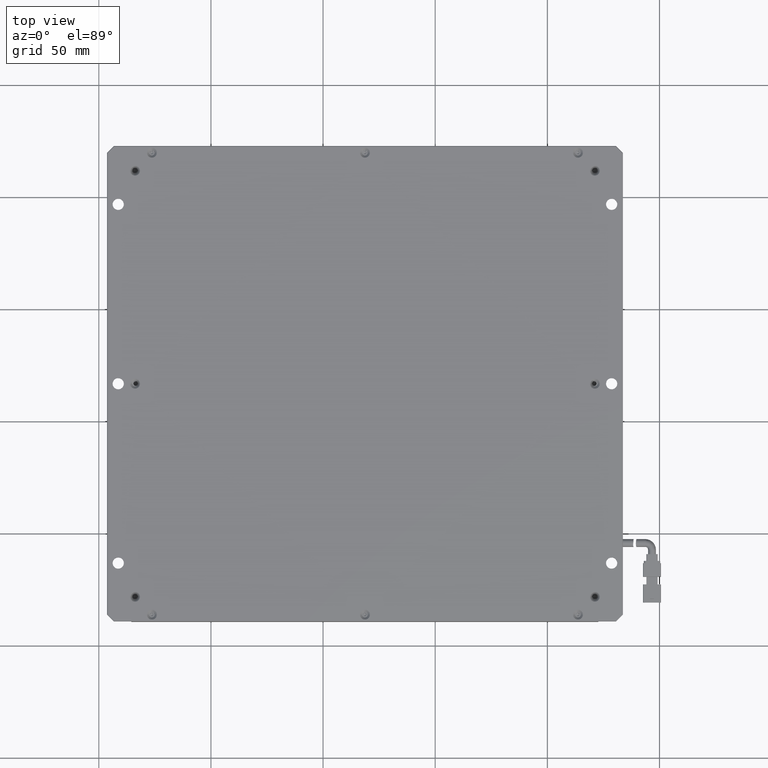
[diagram: clean part render]
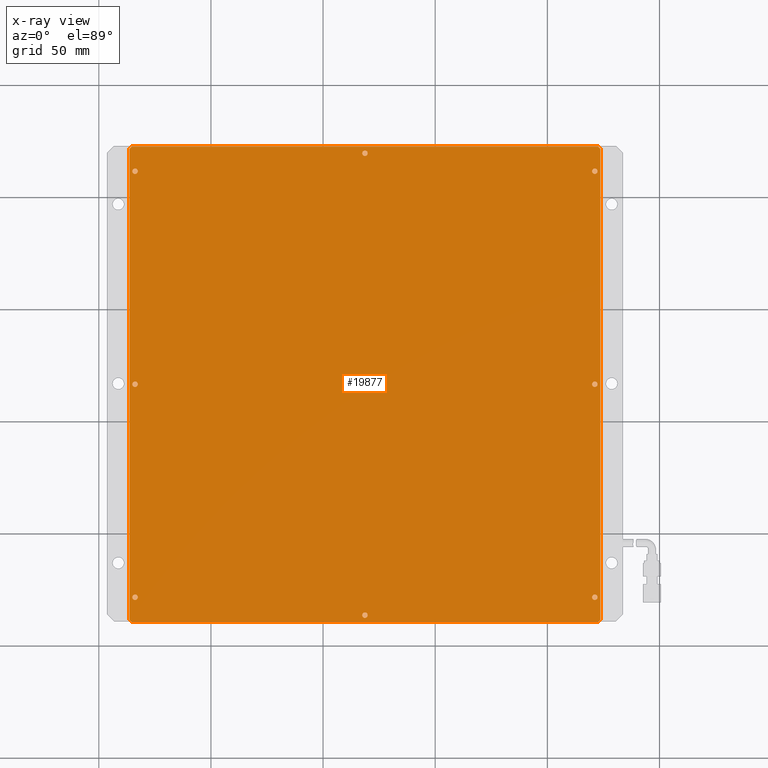
[diagram: x-ray — body ghosted, one internal face saturated and labeled with its STEP entity id]
A machine part, top view, then the same camera in x-ray: the body is ghosted and one INTERNAL B-rep face — a face not visible from any outside direction — is saturated and labeled: STEP entity #19877.
In plain terms, the highlighted planar face has unit normal (0, 0, -1).
Its self-contained STEP definition (entity closure, byte-faithful):
#30 = VERTEX_POINT ( 'NONE', #9973 ) ;
#65 = VERTEX_POINT ( 'NONE', #20280 ) ;
#179 = CARTESIAN_POINT ( 'NONE',  ( 121.1657505824761500, -33.37875398278074400, -13.00000000002364500 ) ) ;
#457 = EDGE_LOOP ( 'NONE', ( #17135, #3938 ) ) ;
#559 = AXIS2_PLACEMENT_3D ( 'NONE', #16356, #14251, #6020 ) ;
#812 = CARTESIAN_POINT ( 'NONE',  ( 122.6657505824761200, -139.3787539827808400, -13.00000000002364500 ) ) ;
#992 = CIRCLE ( 'NONE', #5409, 1.199999999999992600 ) ;
#1040 = EDGE_CURVE ( 'NONE', #5546, #5785, #14976, .T. ) ;
#1345 = VERTEX_POINT ( 'NONE', #15005 ) ;
#1635 = EDGE_LOOP ( 'NONE', ( #11329, #16116 ) ) ;
#1636 = VECTOR ( 'NONE', #17479, 1000.000000000000000 ) ;
#1710 = CARTESIAN_POINT ( 'NONE',  ( -85.33424941752389300, 72.62124601721919200, -13.00000000002364500 ) ) ;
#1742 = CARTESIAN_POINT ( 'NONE',  ( 123.6657505824761500, -138.3787539827808400, -13.00000000002364500 ) ) ;
#1825 = EDGE_CURVE ( 'NONE', #3852, #8651, #992, .T. ) ;
#1938 = DIRECTION ( 'NONE',  ( 1.000000000000000000, 0.0000000000000000000, 0.0000000000000000000 ) ) ;
#2200 = ORIENTED_EDGE ( 'NONE', *, *, #16374, .F. ) ;
#2327 = AXIS2_PLACEMENT_3D ( 'NONE', #8302, #14957, #20410 ) ;
#2459 = DIRECTION ( 'NONE',  ( 0.7071067811865378000, 0.7071067811865573400, 0.0000000000000000000 ) ) ;
#2469 = AXIS2_PLACEMENT_3D ( 'NONE', #4802, #17299, #13577 ) ;
#2512 = EDGE_LOOP ( 'NONE', ( #5818, #7778 ) ) ;
#2598 = DIRECTION ( 'NONE',  ( -0.0000000000000000000, -0.0000000000000000000, 1.000000000000000000 ) ) ;
#2641 = CIRCLE ( 'NONE', #12283, 1.199999999999992600 ) ;
#2692 = EDGE_CURVE ( 'NONE', #19621, #15878, #11511, .T. ) ;
#2702 = AXIS2_PLACEMENT_3D ( 'NONE', #15575, #11958, #12030 ) ;
#2782 = DIRECTION ( 'NONE',  ( -0.0000000000000000000, -0.0000000000000000000, 1.000000000000000000 ) ) ;
#3467 = ORIENTED_EDGE ( 'NONE', *, *, #14783, .T. ) ;
#3553 = DIRECTION ( 'NONE',  ( -0.0000000000000000000, 1.000000000000000000, -0.0000000000000000000 ) ) ;
#3639 = ORIENTED_EDGE ( 'NONE', *, *, #7513, .F. ) ;
#3852 = VERTEX_POINT ( 'NONE', #9574 ) ;
#3938 = ORIENTED_EDGE ( 'NONE', *, *, #19797, .F. ) ;
#3998 = CARTESIAN_POINT ( 'NONE',  ( 18.66575058247614600, 69.62124601721919200, -13.00000000002364500 ) ) ;
#4076 = CARTESIAN_POINT ( 'NONE',  ( -86.33424941752386400, 71.62124601721917800, -13.00000000002364500 ) ) ;
#4167 = VECTOR ( 'NONE', #3553, 1000.000000000000000 ) ;
#4291 = ORIENTED_EDGE ( 'NONE', *, *, #22214, .T. ) ;
#4500 = EDGE_LOOP ( 'NONE', ( #6558, #2200 ) ) ;
#4802 = CARTESIAN_POINT ( 'NONE',  ( 121.1657505824761500, 61.62124601721920000, -13.00000000002364500 ) ) ;
#4855 = CARTESIAN_POINT ( 'NONE',  ( 119.9657505824761600, -128.3787539827808100, -13.00000000002364500 ) ) ;
#5223 = DIRECTION ( 'NONE',  ( -0.0000000000000000000, -0.0000000000000000000, 1.000000000000000000 ) ) ;
#5240 = VERTEX_POINT ( 'NONE', #16181 ) ;
#5286 = CARTESIAN_POINT ( 'NONE',  ( -83.83424941752386400, -33.37875398278074400, -13.00000000002364500 ) ) ;
#5288 = VERTEX_POINT ( 'NONE', #21927 ) ;
#5301 = CIRCLE ( 'NONE', #18554, 1.199999999999992600 ) ;
#5311 = EDGE_CURVE ( 'NONE', #19555, #21539, #17724, .T. ) ;
#5349 = DIRECTION ( 'NONE',  ( 0.7071067811865573400, -0.7071067811865378000, 0.0000000000000000000 ) ) ;
#5409 = AXIS2_PLACEMENT_3D ( 'NONE', #3998, #11118, #7463 ) ;
#5424 = DIRECTION ( 'NONE',  ( -0.0000000000000000000, -0.0000000000000000000, 1.000000000000000000 ) ) ;
#5434 = DIRECTION ( 'NONE',  ( -0.0000000000000000000, -0.0000000000000000000, 1.000000000000000000 ) ) ;
#5514 = CARTESIAN_POINT ( 'NONE',  ( 123.6657505824761400, 71.62124601721922100, -13.00000000002364500 ) ) ;
#5546 = VERTEX_POINT ( 'NONE', #18916 ) ;
#5716 = CIRCLE ( 'NONE', #10912, 1.199999999999992600 ) ;
#5757 = ORIENTED_EDGE ( 'NONE', *, *, #7739, .F. ) ;
#5785 = VERTEX_POINT ( 'NONE', #12670 ) ;
#5818 = ORIENTED_EDGE ( 'NONE', *, *, #19886, .F. ) ;
#5921 = CARTESIAN_POINT ( 'NONE',  ( -86.33424941752386400, -138.3787539827807800, -13.00000000002364500 ) ) ;
#5924 = AXIS2_PLACEMENT_3D ( 'NONE', #9761, #2782, #6295 ) ;
#5995 = CIRCLE ( 'NONE', #2469, 1.199999999999992600 ) ;
#6020 = DIRECTION ( 'NONE',  ( 1.000000000000000000, 0.0000000000000000000, 0.0000000000000000000 ) ) ;
#6262 = LINE ( 'NONE', #5514, #1636 ) ;
#6285 = CARTESIAN_POINT ( 'NONE',  ( -85.03424941752385300, -128.3787539827808100, -13.00000000002364500 ) ) ;
#6295 = DIRECTION ( 'NONE',  ( 1.000000000000000000, 0.0000000000000000000, 0.0000000000000000000 ) ) ;
#6347 = EDGE_CURVE ( 'NONE', #19085, #65, #13023, .T. ) ;
#6496 = ORIENTED_EDGE ( 'NONE', *, *, #18919, .F. ) ;
#6558 = ORIENTED_EDGE ( 'NONE', *, *, #6347, .F. ) ;
#6665 = EDGE_CURVE ( 'NONE', #12750, #18747, #8101, .T. ) ;
#6876 = CARTESIAN_POINT ( 'NONE',  ( 123.6657505824761400, 72.62124601721919200, -13.00000000002364500 ) ) ;
#6998 = EDGE_CURVE ( 'NONE', #15878, #19621, #17342, .T. ) ;
#7197 = CIRCLE ( 'NONE', #18871, 1.199999999999992600 ) ;
#7223 = VERTEX_POINT ( 'NONE', #21160 ) ;
#7463 = DIRECTION ( 'NONE',  ( 1.000000000000000000, 0.0000000000000000000, 0.0000000000000000000 ) ) ;
#7490 = VERTEX_POINT ( 'NONE', #16830 ) ;
#7513 = EDGE_CURVE ( 'NONE', #8651, #3852, #5301, .T. ) ;
#7554 = EDGE_LOOP ( 'NONE', ( #20441, #19545 ) ) ;
#7710 = EDGE_CURVE ( 'NONE', #5785, #5546, #9125, .T. ) ;
#7739 = EDGE_CURVE ( 'NONE', #18043, #17971, #11291, .T. ) ;
#7778 = ORIENTED_EDGE ( 'NONE', *, *, #6665, .F. ) ;
#7896 = AXIS2_PLACEMENT_3D ( 'NONE', #17341, #19089, #8694 ) ;
#7988 = CARTESIAN_POINT ( 'NONE',  ( 123.6657505824761400, 71.62124601721922100, -13.00000000002364500 ) ) ;
#8101 = CIRCLE ( 'NONE', #7896, 1.199999999999992600 ) ;
#8156 = ORIENTED_EDGE ( 'NONE', *, *, #18054, .F. ) ;
#8299 = VECTOR ( 'NONE', #15617, 1000.000000000000000 ) ;
#8302 = CARTESIAN_POINT ( 'NONE',  ( -83.83424941752386400, 61.62124601721920000, -13.00000000002364500 ) ) ;
#8450 = CIRCLE ( 'NONE', #15585, 1.199999999999992600 ) ;
#8633 = EDGE_CURVE ( 'NONE', #19555, #5288, #8990, .T. ) ;
#8643 = DIRECTION ( 'NONE',  ( 1.000000000000000000, 0.0000000000000000000, 0.0000000000000000000 ) ) ;
#8651 = VERTEX_POINT ( 'NONE', #17450 ) ;
#8694 = DIRECTION ( 'NONE',  ( 1.000000000000000000, 0.0000000000000000000, 0.0000000000000000000 ) ) ;
#8991 = AXIS2_PLACEMENT_3D ( 'NONE', #13940, #19107, #19413 ) ;
#8990 = LINE ( 'NONE', #13432, #17671 ) ;
#9111 = EDGE_LOOP ( 'NONE', ( #19118, #8156 ) ) ;
#9125 = CIRCLE ( 'NONE', #8991, 1.199999999999992600 ) ;
#9237 = CARTESIAN_POINT ( 'NONE',  ( -85.03424941752385300, 61.62124601721920000, -13.00000000002364500 ) ) ;
#9300 = FACE_BOUND ( 'NONE', #457, .T. ) ;
#9492 = DIRECTION ( 'NONE',  ( 1.000000000000000000, 0.0000000000000000000, 0.0000000000000000000 ) ) ;
#9541 = CARTESIAN_POINT ( 'NONE',  ( 122.3657505824761500, 61.62124601721920000, -13.00000000002364500 ) ) ;
#9560 = FACE_BOUND ( 'NONE', #21924, .T. ) ;
#9574 = CARTESIAN_POINT ( 'NONE',  ( 17.46575058247615400, 69.62124601721919200, -13.00000000002364500 ) ) ;
#9688 = ORIENTED_EDGE ( 'NONE', *, *, #8633, .F. ) ;
#9703 = CARTESIAN_POINT ( 'NONE',  ( 18.66575058247614600, 69.62124601721919200, -13.00000000002364500 ) ) ;
#9761 = CARTESIAN_POINT ( 'NONE',  ( 121.1657505824761500, -128.3787539827808100, -13.00000000002364500 ) ) ;
#9786 = EDGE_CURVE ( 'NONE', #18043, #5288, #10538, .T. ) ;
#9973 = CARTESIAN_POINT ( 'NONE',  ( 122.6657505824761200, 72.62124601721919200, -13.00000000002364500 ) ) ;
#10111 = VERTEX_POINT ( 'NONE', #4855 ) ;
#10134 = AXIS2_PLACEMENT_3D ( 'NONE', #15838, #5424, #19510 ) ;
#10159 = VERTEX_POINT ( 'NONE', #20834 ) ;
#10329 = ORIENTED_EDGE ( 'NONE', *, *, #5311, .T. ) ;
#10538 = LINE ( 'NONE', #15624, #22192 ) ;
#10912 = AXIS2_PLACEMENT_3D ( 'NONE', #22330, #5223, #13685 ) ;
#10930 = AXIS2_PLACEMENT_3D ( 'NONE', #19501, #14031, #21227 ) ;
#11044 = DIRECTION ( 'NONE',  ( 1.000000000000000000, 0.0000000000000000000, 0.0000000000000000000 ) ) ;
#11063 = VECTOR ( 'NONE', #17020, 1000.000000000000000 ) ;
#11118 = DIRECTION ( 'NONE',  ( -0.0000000000000000000, -0.0000000000000000000, 1.000000000000000000 ) ) ;
#11235 = EDGE_CURVE ( 'NONE', #10159, #11550, #5995, .T. ) ;
#11269 = CIRCLE ( 'NONE', #20469, 1.199999999999992600 ) ;
#11291 = LINE ( 'NONE', #21138, #4167 ) ;
#11329 = ORIENTED_EDGE ( 'NONE', *, *, #18927, .F. ) ;
#11511 = CIRCLE ( 'NONE', #10134, 1.199999999999992600 ) ;
#11550 = VERTEX_POINT ( 'NONE', #9541 ) ;
#11579 = ORIENTED_EDGE ( 'NONE', *, *, #9786, .T. ) ;
#11958 = DIRECTION ( 'NONE',  ( 0.0000000000000000000, 0.0000000000000000000, -1.000000000000000000 ) ) ;
#12030 = DIRECTION ( 'NONE',  ( 1.000000000000000000, 0.0000000000000000000, 0.0000000000000000000 ) ) ;
#12114 = AXIS2_PLACEMENT_3D ( 'NONE', #5286, #5434, #15930 ) ;
#12283 = AXIS2_PLACEMENT_3D ( 'NONE', #179, #20942, #1938 ) ;
#12670 = CARTESIAN_POINT ( 'NONE',  ( 19.86575058247613900, -136.3787539827807800, -13.00000000002364500 ) ) ;
#12737 = DIRECTION ( 'NONE',  ( -0.0000000000000000000, -0.0000000000000000000, 1.000000000000000000 ) ) ;
#12750 = VERTEX_POINT ( 'NONE', #6285 ) ;
#12814 = FACE_BOUND ( 'NONE', #7554, .T. ) ;
#12925 = EDGE_CURVE ( 'NONE', #18112, #21539, #16770, .T. ) ;
#12979 = CARTESIAN_POINT ( 'NONE',  ( 121.1657505824761500, -128.3787539827808100, -13.00000000002364500 ) ) ;
#13023 = CIRCLE ( 'NONE', #559, 1.199999999999992600 ) ;
#13432 = CARTESIAN_POINT ( 'NONE',  ( 123.6657505824761400, -139.3787539827808400, -13.00000000002364500 ) ) ;
#13577 = DIRECTION ( 'NONE',  ( 1.000000000000000000, 0.0000000000000000000, 0.0000000000000000000 ) ) ;
#13685 = DIRECTION ( 'NONE',  ( 1.000000000000000000, 0.0000000000000000000, 0.0000000000000000000 ) ) ;
#13940 = CARTESIAN_POINT ( 'NONE',  ( 18.66575058247614600, -136.3787539827807800, -13.00000000002364500 ) ) ;
#14031 = DIRECTION ( 'NONE',  ( -0.0000000000000000000, -0.0000000000000000000, 1.000000000000000000 ) ) ;
#14251 = DIRECTION ( 'NONE',  ( -0.0000000000000000000, -0.0000000000000000000, 1.000000000000000000 ) ) ;
#14548 = LINE ( 'NONE', #1710, #20221 ) ;
#14783 = EDGE_CURVE ( 'NONE', #18112, #30, #6262, .T. ) ;
#14957 = DIRECTION ( 'NONE',  ( -0.0000000000000000000, -0.0000000000000000000, 1.000000000000000000 ) ) ;
#14976 = CIRCLE ( 'NONE', #10930, 1.199999999999992600 ) ;
#15005 = CARTESIAN_POINT ( 'NONE',  ( -85.03424941752385300, -33.37875398278074400, -13.00000000002364500 ) ) ;
#15313 = ORIENTED_EDGE ( 'NONE', *, *, #7710, .F. ) ;
#15575 = CARTESIAN_POINT ( 'NONE',  ( 123.6657505824761400, 72.62124601721919200, -13.00000000002364500 ) ) ;
#15585 = AXIS2_PLACEMENT_3D ( 'NONE', #12979, #2598, #9492 ) ;
#15617 = DIRECTION ( 'NONE',  ( 1.000000000000000000, 0.0000000000000000000, 0.0000000000000000000 ) ) ;
#15624 = CARTESIAN_POINT ( 'NONE',  ( -86.33424941752385000, -138.3787539827808400, -13.00000000002364500 ) ) ;
#15727 = EDGE_LOOP ( 'NONE', ( #3639, #20273 ) ) ;
#15838 = CARTESIAN_POINT ( 'NONE',  ( -83.83424941752386400, 61.62124601721920000, -13.00000000002364500 ) ) ;
#15876 = EDGE_CURVE ( 'NONE', #7223, #1345, #21468, .T. ) ;
#15878 = VERTEX_POINT ( 'NONE', #21023 ) ;
#15930 = DIRECTION ( 'NONE',  ( 1.000000000000000000, 0.0000000000000000000, 0.0000000000000000000 ) ) ;
#16066 = FACE_OUTER_BOUND ( 'NONE', #21357, .T. ) ;
#16079 = VECTOR ( 'NONE', #2459, 1000.000000000000000 ) ;
#16114 = EDGE_CURVE ( 'NONE', #7490, #10111, #8450, .T. ) ;
#16116 = ORIENTED_EDGE ( 'NONE', *, *, #11235, .F. ) ;
#16181 = CARTESIAN_POINT ( 'NONE',  ( -85.33424941752390700, 72.62124601721917800, -13.00000000002364500 ) ) ;
#16356 = CARTESIAN_POINT ( 'NONE',  ( 121.1657505824761500, -33.37875398278074400, -13.00000000002364500 ) ) ;
#16374 = EDGE_CURVE ( 'NONE', #65, #19085, #2641, .T. ) ;
#16397 = CARTESIAN_POINT ( 'NONE',  ( 122.6657505824761800, -139.3787539827808100, -13.00000000002364500 ) ) ;
#16612 = CIRCLE ( 'NONE', #5924, 1.199999999999992600 ) ;
#16770 = LINE ( 'NONE', #20351, #11063 ) ;
#16830 = CARTESIAN_POINT ( 'NONE',  ( 122.3657505824761500, -128.3787539827808100, -13.00000000002364500 ) ) ;
#16919 = DIRECTION ( 'NONE',  ( -1.000000000000000000, -0.0000000000000000000, -0.0000000000000000000 ) ) ;
#17020 = DIRECTION ( 'NONE',  ( 0.0000000000000000000, -1.000000000000000000, 0.0000000000000000000 ) ) ;
#17076 = CARTESIAN_POINT ( 'NONE',  ( -82.63424941752387600, -128.3787539827808100, -13.00000000002364500 ) ) ;
#17135 = ORIENTED_EDGE ( 'NONE', *, *, #16114, .F. ) ;
#17299 = DIRECTION ( 'NONE',  ( -0.0000000000000000000, -0.0000000000000000000, 1.000000000000000000 ) ) ;
#17341 = CARTESIAN_POINT ( 'NONE',  ( -83.83424941752386400, -128.3787539827808100, -13.00000000002364500 ) ) ;
#17342 = CIRCLE ( 'NONE', #2327, 1.199999999999992600 ) ;
#17397 = DIRECTION ( 'NONE',  ( -0.7071067811865378000, -0.7071067811865573400, 0.0000000000000000000 ) ) ;
#17412 = PLANE ( 'NONE',  #2702 ) ;
#17450 = CARTESIAN_POINT ( 'NONE',  ( 19.86575058247613900, 69.62124601721919200, -13.00000000002364500 ) ) ;
#17479 = DIRECTION ( 'NONE',  ( -0.7071067811865573400, 0.7071067811865378000, -0.0000000000000000000 ) ) ;
#17671 = VECTOR ( 'NONE', #16919, 1000.000000000000000 ) ;
#17714 = FACE_BOUND ( 'NONE', #15727, .T. ) ;
#17724 = LINE ( 'NONE', #16397, #16079 ) ;
#17808 = DIRECTION ( 'NONE',  ( -0.0000000000000000000, -0.0000000000000000000, 1.000000000000000000 ) ) ;
#17971 = VERTEX_POINT ( 'NONE', #4076 ) ;
#17982 = FACE_BOUND ( 'NONE', #4500, .T. ) ;
#18043 = VERTEX_POINT ( 'NONE', #5921 ) ;
#18054 = EDGE_CURVE ( 'NONE', #1345, #7223, #7197, .T. ) ;
#18112 = VERTEX_POINT ( 'NONE', #7988 ) ;
#18201 = CARTESIAN_POINT ( 'NONE',  ( 122.3657505824761500, -33.37875398278074400, -13.00000000002364500 ) ) ;
#18554 = AXIS2_PLACEMENT_3D ( 'NONE', #9703, #21816, #8643 ) ;
#18709 = ORIENTED_EDGE ( 'NONE', *, *, #1040, .F. ) ;
#18747 = VERTEX_POINT ( 'NONE', #17076 ) ;
#18871 = AXIS2_PLACEMENT_3D ( 'NONE', #19768, #17808, #11044 ) ;
#18916 = CARTESIAN_POINT ( 'NONE',  ( 17.46575058247615400, -136.3787539827807800, -13.00000000002364500 ) ) ;
#18919 = EDGE_CURVE ( 'NONE', #5240, #30, #19953, .T. ) ;
#18927 = EDGE_CURVE ( 'NONE', #11550, #10159, #11269, .T. ) ;
#19071 = FACE_BOUND ( 'NONE', #9111, .T. ) ;
#19085 = VERTEX_POINT ( 'NONE', #18201 ) ;
#19089 = DIRECTION ( 'NONE',  ( -0.0000000000000000000, -0.0000000000000000000, 1.000000000000000000 ) ) ;
#19107 = DIRECTION ( 'NONE',  ( -0.0000000000000000000, -0.0000000000000000000, 1.000000000000000000 ) ) ;
#19118 = ORIENTED_EDGE ( 'NONE', *, *, #15876, .F. ) ;
#19413 = DIRECTION ( 'NONE',  ( 1.000000000000000000, 0.0000000000000000000, 0.0000000000000000000 ) ) ;
#19501 = CARTESIAN_POINT ( 'NONE',  ( 18.66575058247614600, -136.3787539827807800, -13.00000000002364500 ) ) ;
#19510 = DIRECTION ( 'NONE',  ( 1.000000000000000000, 0.0000000000000000000, 0.0000000000000000000 ) ) ;
#19545 = ORIENTED_EDGE ( 'NONE', *, *, #2692, .F. ) ;
#19555 = VERTEX_POINT ( 'NONE', #812 ) ;
#19621 = VERTEX_POINT ( 'NONE', #9237 ) ;
#19638 = CARTESIAN_POINT ( 'NONE',  ( 121.1657505824761500, 61.62124601721920000, -13.00000000002364500 ) ) ;
#19703 = ORIENTED_EDGE ( 'NONE', *, *, #12925, .F. ) ;
#19768 = CARTESIAN_POINT ( 'NONE',  ( -83.83424941752386400, -33.37875398278074400, -13.00000000002364500 ) ) ;
#19797 = EDGE_CURVE ( 'NONE', #10111, #7490, #16612, .T. ) ;
#19877 = ADVANCED_FACE ( 'NONE', ( #16066, #17714, #9560, #9300, #17982, #21488, #22031, #19071, #12814 ), #17412, .F. ) ;
#19886 = EDGE_CURVE ( 'NONE', #18747, #12750, #5716, .T. ) ;
#19953 = LINE ( 'NONE', #6876, #8299 ) ;
#20221 = VECTOR ( 'NONE', #17397, 1000.000000000000000 ) ;
#20273 = ORIENTED_EDGE ( 'NONE', *, *, #1825, .F. ) ;
#20280 = CARTESIAN_POINT ( 'NONE',  ( 119.9657505824761600, -33.37875398278074400, -13.00000000002364500 ) ) ;
#20351 = CARTESIAN_POINT ( 'NONE',  ( 123.6657505824761400, 72.62124601721919200, -13.00000000002364500 ) ) ;
#20410 = DIRECTION ( 'NONE',  ( 1.000000000000000000, 0.0000000000000000000, 0.0000000000000000000 ) ) ;
#20441 = ORIENTED_EDGE ( 'NONE', *, *, #6998, .F. ) ;
#20469 = AXIS2_PLACEMENT_3D ( 'NONE', #19638, #12737, #21391 ) ;
#20834 = CARTESIAN_POINT ( 'NONE',  ( 119.9657505824761600, 61.62124601721920000, -13.00000000002364500 ) ) ;
#20942 = DIRECTION ( 'NONE',  ( -0.0000000000000000000, -0.0000000000000000000, 1.000000000000000000 ) ) ;
#21023 = CARTESIAN_POINT ( 'NONE',  ( -82.63424941752387600, 61.62124601721920000, -13.00000000002364500 ) ) ;
#21138 = CARTESIAN_POINT ( 'NONE',  ( -86.33424941752387800, 72.62124601721919200, -13.00000000002364500 ) ) ;
#21160 = CARTESIAN_POINT ( 'NONE',  ( -82.63424941752387600, -33.37875398278074400, -13.00000000002364500 ) ) ;
#21227 = DIRECTION ( 'NONE',  ( 1.000000000000000000, 0.0000000000000000000, 0.0000000000000000000 ) ) ;
#21357 = EDGE_LOOP ( 'NONE', ( #3467, #6496, #4291, #5757, #11579, #9688, #10329, #19703 ) ) ;
#21391 = DIRECTION ( 'NONE',  ( 1.000000000000000000, 0.0000000000000000000, 0.0000000000000000000 ) ) ;
#21468 = CIRCLE ( 'NONE', #12114, 1.199999999999992600 ) ;
#21488 = FACE_BOUND ( 'NONE', #1635, .T. ) ;
#21539 = VERTEX_POINT ( 'NONE', #1742 ) ;
#21816 = DIRECTION ( 'NONE',  ( -0.0000000000000000000, -0.0000000000000000000, 1.000000000000000000 ) ) ;
#21924 = EDGE_LOOP ( 'NONE', ( #15313, #18709 ) ) ;
#21927 = CARTESIAN_POINT ( 'NONE',  ( -85.33424941752389300, -139.3787539827807800, -13.00000000002364500 ) ) ;
#22031 = FACE_BOUND ( 'NONE', #2512, .T. ) ;
#22192 = VECTOR ( 'NONE', #5349, 1000.000000000000000 ) ;
#22214 = EDGE_CURVE ( 'NONE', #5240, #17971, #14548, .T. ) ;
#22330 = CARTESIAN_POINT ( 'NONE',  ( -83.83424941752386400, -128.3787539827808100, -13.00000000002364500 ) ) ;